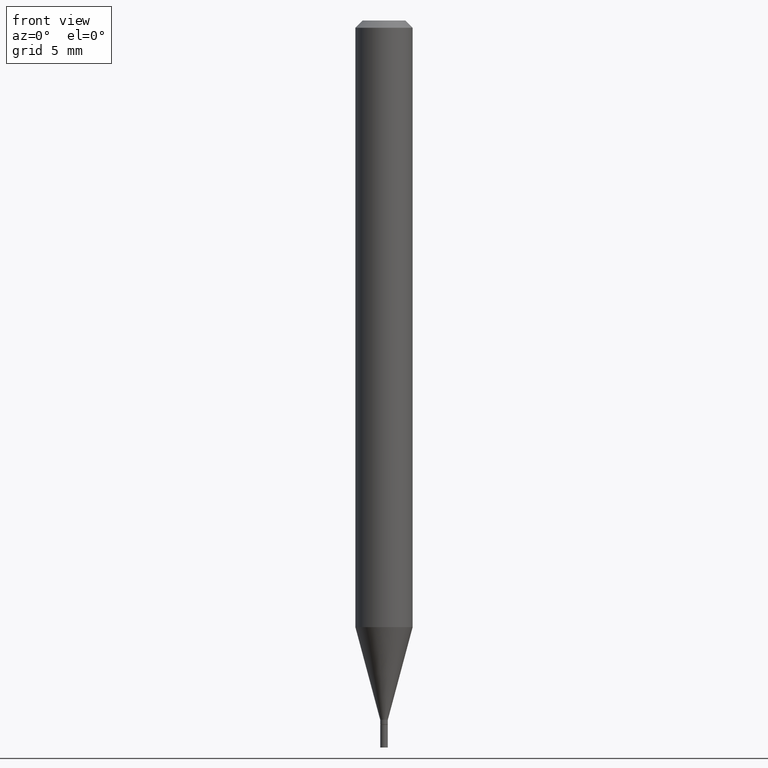
[diagram: clean part render]
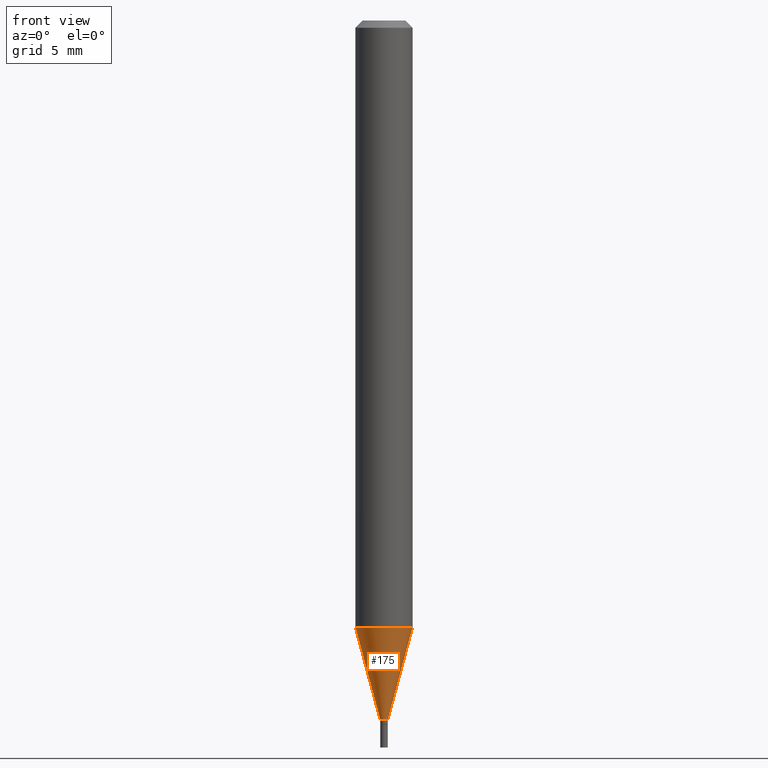
[diagram: same view with one face highlighted and labeled with its STEP entity id]
A machine part, front view. The second image highlights one B-rep face of the part: STEP entity #175.
In plain terms, the highlighted conical surface has half-angle 15 deg.
Its self-contained STEP definition (entity closure, byte-faithful):
#7 = AXIS2_PLACEMENT_3D ( 'NONE', #420, #95, #389 ) ;
#34 = CIRCLE ( 'NONE', #7, 0.007849999999999919542 ) ;
#79 = DIRECTION ( 'NONE',  ( 1.000000000000000000, -6.982962677686274599E-15, 0.000000000000000000 ) ) ;
#87 = CARTESIAN_POINT ( 'NONE',  ( -0.007849999999999919542, -4.981731670925723825E-15, -1.442800000000000304 ) ) ;
#88 = CARTESIAN_POINT ( 'NONE',  ( -0.007849999999999919542, -4.466254855364963601E-15, -1.442800000000000304 ) ) ;
#89 = EDGE_CURVE ( 'NONE', #460, #145, #447, .T. ) ;
#92 = ORIENTED_EDGE ( 'NONE', *, *, #290, .F. ) ;
#95 = DIRECTION ( 'NONE',  ( -2.445468806185136597E-29, 3.491481338843145583E-15, 1.000000000000000000 ) ) ;
#124 = CONICAL_SURFACE ( 'NONE', #340, 0.007849999999999919542, 0.2617993877991501295 ) ;
#125 = VECTOR ( 'NONE', #416, 39.37007874015747433 ) ;
#136 = CARTESIAN_POINT ( 'NONE',  ( 3.061039765313920249E-29, -4.370353525270541292E-15, -1.251718998652473935 ) ) ;
#139 = EDGE_CURVE ( 'NONE', #460, #457, #34, .T. ) ;
#145 = VERTEX_POINT ( 'NONE', #371 ) ;
#147 = DIRECTION ( 'NONE',  ( -2.445468806185136597E-29, 3.491481338843145583E-15, 1.000000000000000000 ) ) ;
#175 = ADVANCED_FACE ( 'NONE', ( #335 ), #124, .T. ) ;
#186 = VERTEX_POINT ( 'NONE', #373 ) ;
#191 = EDGE_LOOP ( 'NONE', ( #405, #370, #445, #92 ) ) ;
#202 = CARTESIAN_POINT ( 'NONE',  ( 0.007849999999999919542, -5.092325532702727858E-15, -1.442800000000000304 ) ) ;
#205 = LINE ( 'NONE', #202, #125 ) ;
#237 = VECTOR ( 'NONE', #348, 39.37007874015747433 ) ;
#245 = CARTESIAN_POINT ( 'NONE',  ( 0.007849999999999919542, -5.092325532702727858E-15, -1.442800000000000304 ) ) ;
#280 = DIRECTION ( 'NONE',  ( -2.445468806185136597E-29, 3.491481338843145583E-15, 1.000000000000000000 ) ) ;
#290 = EDGE_CURVE ( 'NONE', #145, #186, #385, .T. ) ;
#335 = FACE_OUTER_BOUND ( 'NONE', #191, .T. ) ;
#339 = CARTESIAN_POINT ( 'NONE',  ( 3.528322393563915424E-29, -5.037509275682891069E-15, -1.442800000000000304 ) ) ;
#340 = AXIS2_PLACEMENT_3D ( 'NONE', #339, #147, #79 ) ;
#348 = DIRECTION ( 'NONE',  ( -0.2588190451025214611, 5.211531920934551042E-15, 0.9659258262890682012 ) ) ;
#370 = ORIENTED_EDGE ( 'NONE', *, *, #139, .T. ) ;
#371 = CARTESIAN_POINT ( 'NONE',  ( -0.05904999999999998445, -3.950778039804202587E-15, -1.251718998652473935 ) ) ;
#373 = CARTESIAN_POINT ( 'NONE',  ( 0.05904999999999998445, -4.782697471387915423E-15, -1.251718998652473935 ) ) ;
#385 = CIRCLE ( 'NONE', #401, 0.05904999999999999832 ) ;
#389 = DIRECTION ( 'NONE',  ( 1.000000000000000000, -6.982962677686274599E-15, 0.000000000000000000 ) ) ;
#401 = AXIS2_PLACEMENT_3D ( 'NONE', #136, #280, #426 ) ;
#405 = ORIENTED_EDGE ( 'NONE', *, *, #89, .F. ) ;
#416 = DIRECTION ( 'NONE',  ( 0.2588190451025214611, 1.565188264969621573E-15, 0.9659258262890682012 ) ) ;
#420 = CARTESIAN_POINT ( 'NONE',  ( 3.528322393563915424E-29, -5.037509275682891069E-15, -1.442800000000000304 ) ) ;
#426 = DIRECTION ( 'NONE',  ( 1.000000000000000000, -6.982962677686273021E-15, 0.000000000000000000 ) ) ;
#445 = ORIENTED_EDGE ( 'NONE', *, *, #448, .T. ) ;
#447 = LINE ( 'NONE', #87, #237 ) ;
#448 = EDGE_CURVE ( 'NONE', #457, #186, #205, .T. ) ;
#457 = VERTEX_POINT ( 'NONE', #245 ) ;
#460 = VERTEX_POINT ( 'NONE', #88 ) ;